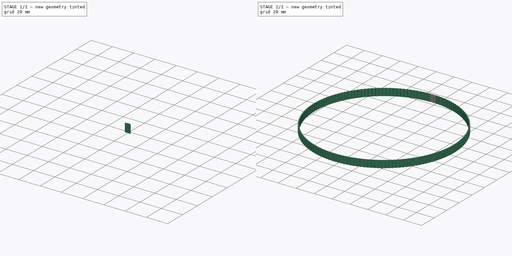
[diagram: build sequence overview — one tinted view per stage of 2, left to right]
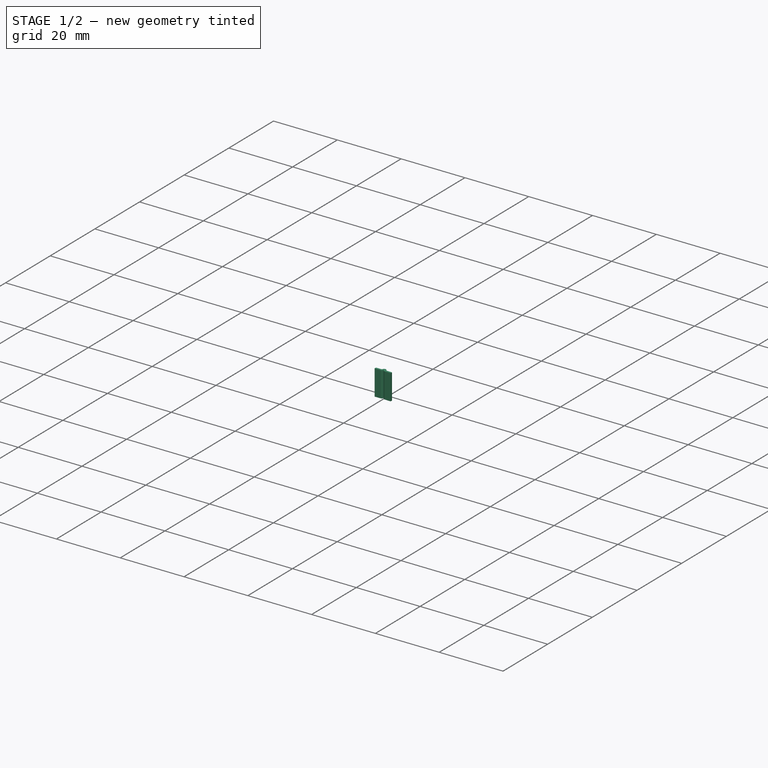
[diagram: stage 1 of 2 — iso view after this stage's code; geometry added in this stage tinted green]
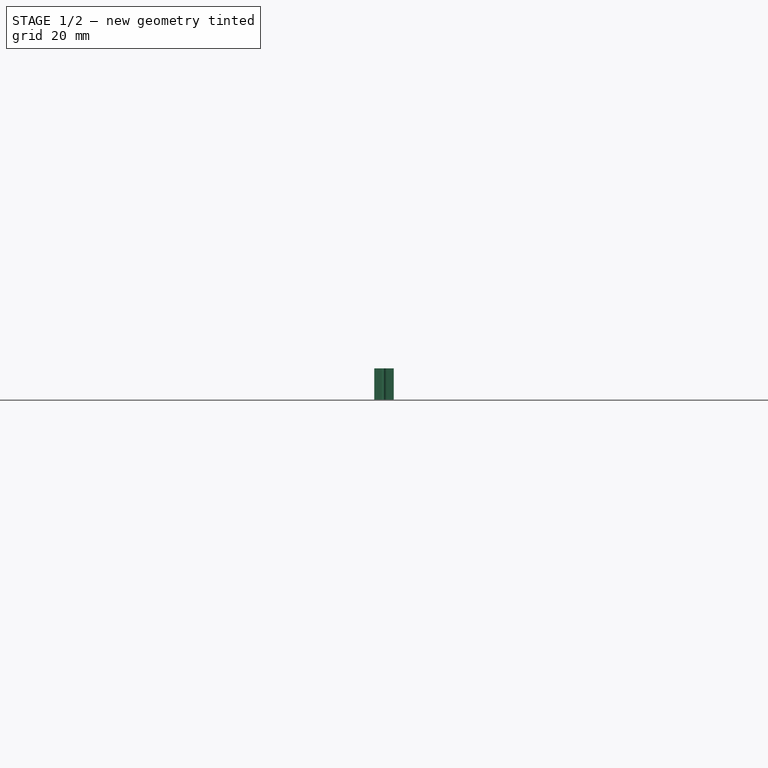
[diagram: stage 1 of 2 — front view after this stage's code; geometry added in this stage tinted green]
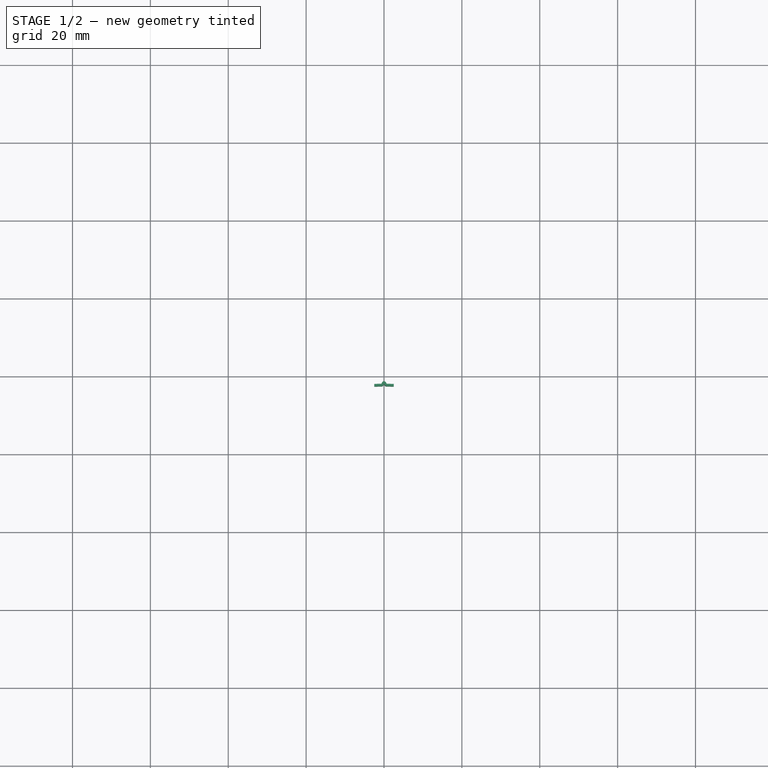
[diagram: stage 1 of 2 — top view after this stage's code; geometry added in this stage tinted green]
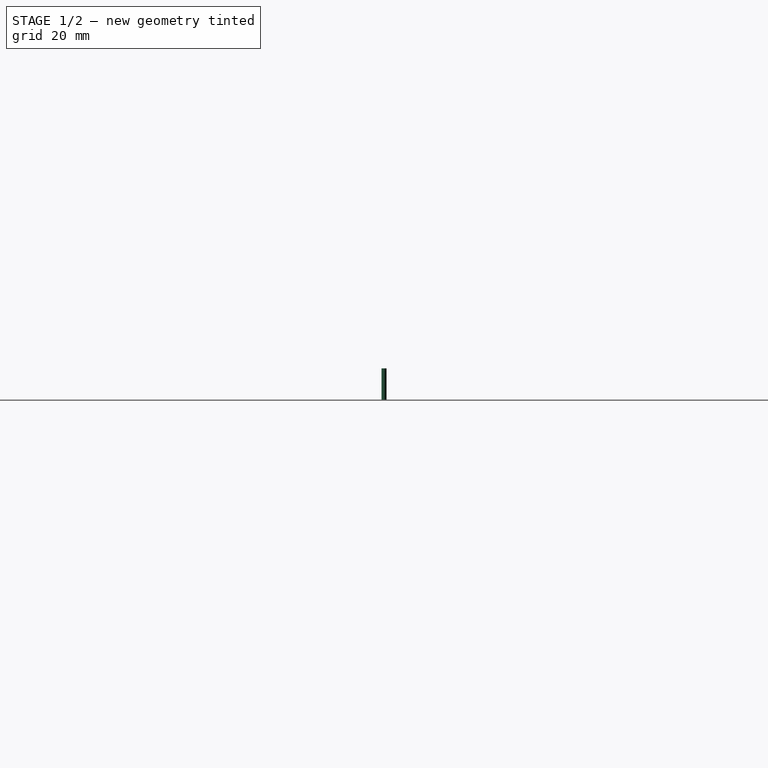
[diagram: stage 1 of 2 — right view after this stage's code; geometry added in this stage tinted green]
FCSTD DOCUMENT  (FreeCAD 0.20R28647 (Git))
Label: Hinterrad_Tire2
License: All rights reserved
LicenseURL: http://en.wikipedia.org/wiki/All_rights_reserved
objects: Sketcher::SketchObject×1, PartDesign::Pad×1, PartDesign::PolarPattern×1, PartDesign::Body×1, App::MeasureDistance×1
note: 5 computed .brp shape members not serialized (recipe doc carries the construction recipe); baked Part::Feature solids carry a one-line shape summary decoded from their .brp

FEATURE [Sketcher::SketchObject] Sketch
  FullyConstrained = true
  MapMode = 5
  Support = -> [XY_Plane]
  sketch-geometry (14):
    g0: ArcOfCircle CenterX=0 CenterY=0 CenterZ=0 NormalX=0 NormalY=0 NormalZ=1 AngleXU=0 Radius=77.5 StartAngle=1.53853 EndAngle=1.56223
    g1: LineSegment StartX=-2.51935 StartY=78.0594 StartZ=0 EndX=-2.5 EndY=77.4597 EndZ=0
    g2: LineSegment StartX=2.5 StartY=77.4597 StartZ=0 EndX=2.51935 EndY=78.0594 EndZ=0
    g3: LineSegment StartX=-0.669133 StartY=78.0971 StartZ=0 EndX=-0.554328 EndY=78.3743 EndZ=0
    g4: LineSegment StartX=0.554328 StartY=78.3743 StartZ=0 EndX=0.669133 EndY=78.0971 EndZ=0
    g5: ArcOfCircle CenterX=0 CenterY=0 CenterZ=0 NormalX=0 NormalY=0 NormalZ=1 AngleXU=0 Radius=78.1 StartAngle=1.53853 EndAngle=1.56223
    g6: ArcOfCircle CenterX=0 CenterY=0 CenterZ=0 NormalX=0 NormalY=0 NormalZ=1 AngleXU=0 Radius=78.1 StartAngle=1.57936 EndAngle=1.60306
    g7: ArcOfCircle CenterX=0.669133 CenterY=78.0971 CenterZ=0 NormalX=0 NormalY=0 NormalZ=1 AngleXU=0 Radius=0.6 StartAngle=3.53429 EndAngle=4.70382
    g8: ArcOfCircle CenterX=0 CenterY=0 CenterZ=0 NormalX=0 NormalY=0 NormalZ=1 AngleXU=0 Radius=77.5 StartAngle=1.57936 EndAngle=1.60306
    g9: LineSegment StartX=-0.114805 StartY=77.8675 StartZ=0 EndX=0 EndY=78.1447 EndZ=0
    g10: LineSegment StartX=0 StartY=78.1447 StartZ=0 EndX=0.114805 EndY=77.8675 EndZ=0
    g11: ArcOfCircle CenterX=-0.669133 CenterY=78.0971 CenterZ=0 NormalX=0 NormalY=0 NormalZ=1 AngleXU=0 Radius=0.6 StartAngle=4.72097 EndAngle=5.89049
    g12: ArcOfCircle CenterX=0 CenterY=78.1447 CenterZ=0 NormalX=0 NormalY=0 NormalZ=1 AngleXU=0 Radius=0.6 StartAngle=0.392699 EndAngle=2.74889
    g13: GeomPoint X=1.23e-14 Y=79.7126 Z=0
  constraints (35):
    c: Coincident(g0,g-1)
    c: Coincident(g5,g0)
    c: Coincident(g1,g6)
    c: Coincident(g1,g8)
    c: Coincident(g2,g0)
    c: Coincident(g2,g5)
    c: PointOnObject(g0,g2)
    c: PointOnObject(g0,g1)
    c: Distance(g2) = 0.6
    c: Symmetric(g8,g0,g-2)
    c: Coincident(g5,g6)
    c: Coincident(g5,g4)
    c: PointOnObject(g3,g5)
    c: Radius(g0) = 77.5
    c: Coincident(g7,g4)
    c: Coincident(g0,g8)
    c: Tangent(g0,g7) = 1.5708
    c: Coincident(g9,g10)
    c: Tangent(g10,g7) = -1.5708
    c: Tangent(g9,g11) = -1.5708
    c: PointOnObject(g13,g3)
    c: PointOnObject(g13,g4)
    c: Tangent(g3,g12) = 1.5708
    c: Tangent(g4,g12) = 1.5708
    c: Equal(g10,g9)
    c: Coincident(g9,g12)
    c: Equal(g11,g7)
    c: Distance(g4) = 0.3
    c: Equal(g11,g12)
    c: Angle(g9,g10) = 0.785398
    c: Coincident(g11,g3)
    c: DistanceX(g1,g0) = 5
    c: Coincident(g6,g3)
    c: Coincident(g8,g11)
    c: PointOnObject(g9,g-2)
FEATURE [PartDesign::Pad] Pad
  Direction = (0,0,1)
  Length = 8
  Length2 = 10
  Profile = -> Sketch
  ReferenceAxis = -> Sketch [N_Axis]
  Type = 0
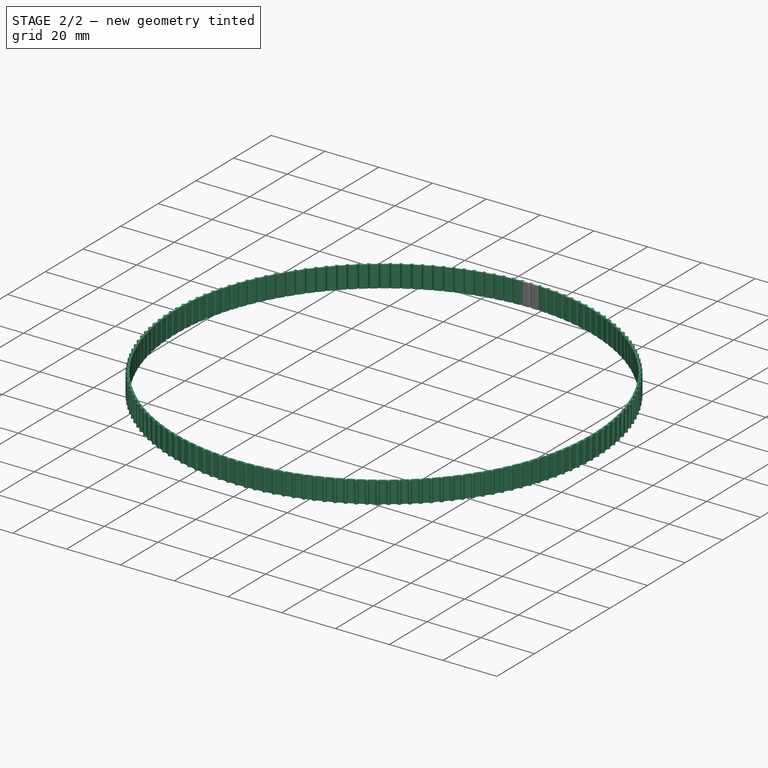
[diagram: stage 2 of 2 — iso view after this stage's code; geometry added in this stage tinted green]
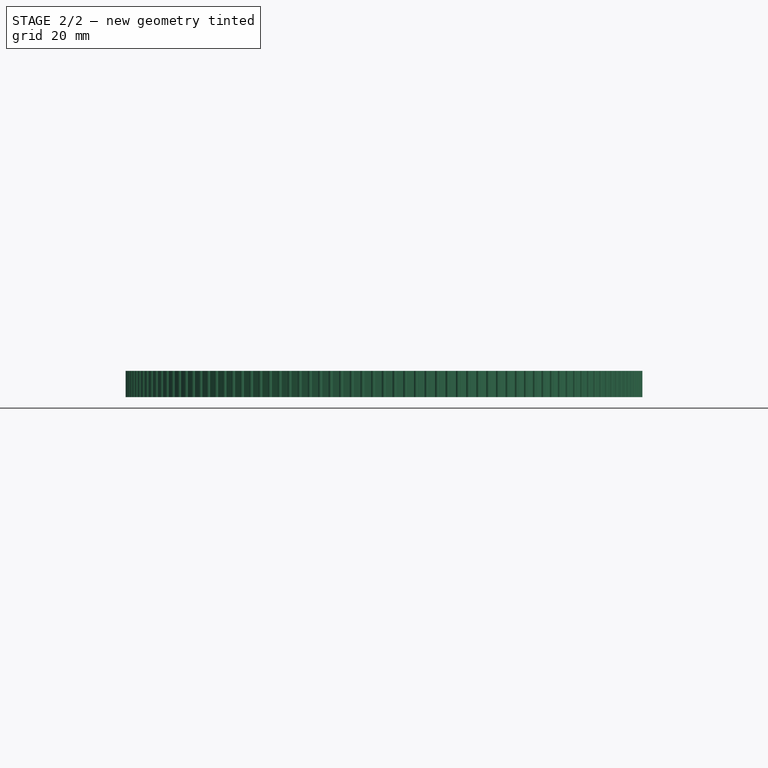
[diagram: stage 2 of 2 — front view after this stage's code; geometry added in this stage tinted green]
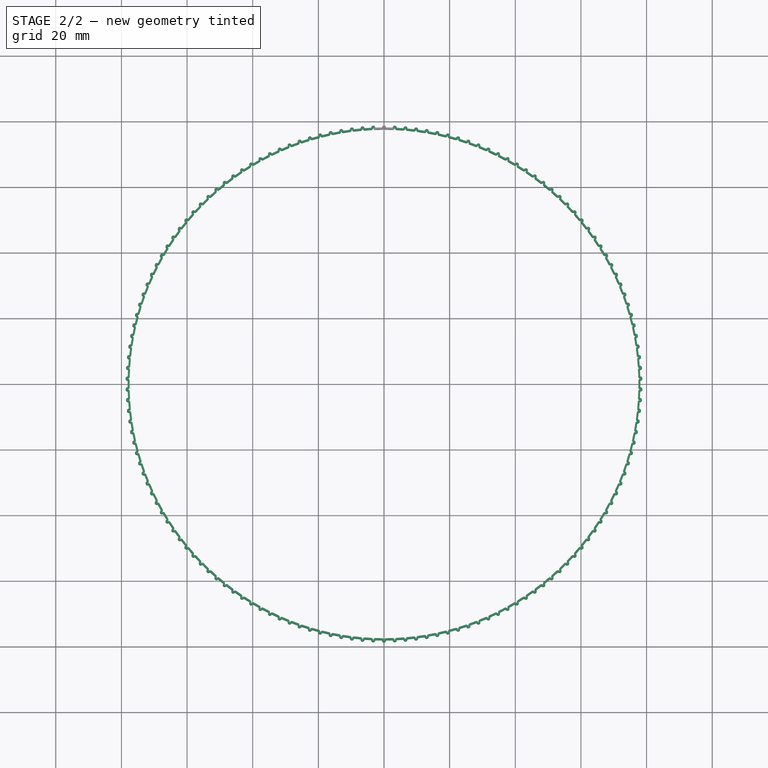
[diagram: stage 2 of 2 — top view after this stage's code; geometry added in this stage tinted green]
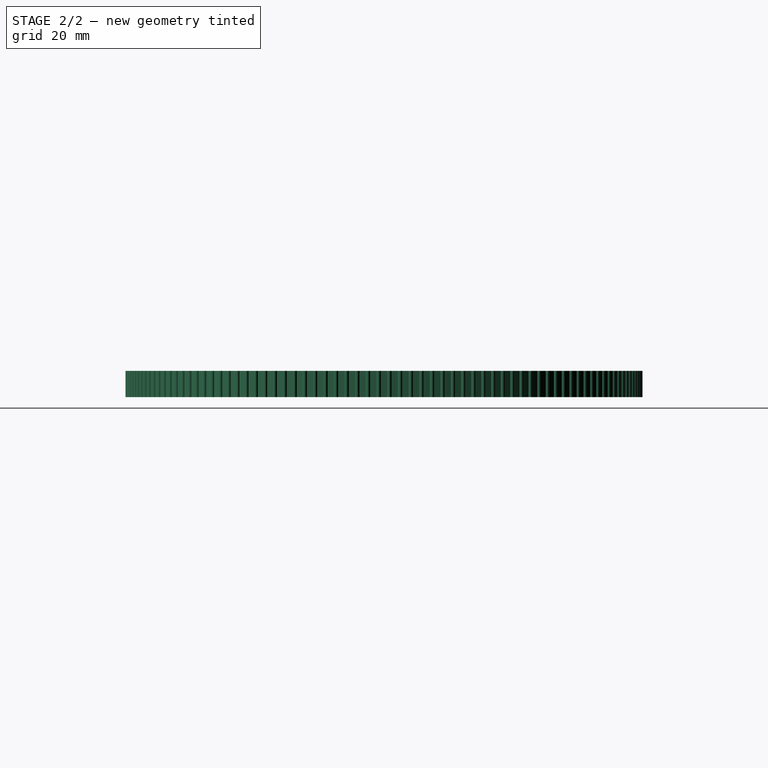
[diagram: stage 2 of 2 — right view after this stage's code; geometry added in this stage tinted green]
FEATURE [PartDesign::PolarPattern] PolarPattern
  Angle = 360
  Axis = -> Sketch [N_Axis]
  BaseFeature = -> Pad
  Occurrences = 150
  Originals = -> [Pad]
  Overlap = 0
  Refine = true
FEATURE [PartDesign::Body] Body
  Group = -> [Sketch,Pad,PolarPattern]
  Origin = -> Origin
  Tip = -> PolarPattern
FEATURE [App::MeasureDistance] Distance  label="Distance: 4,609 mm"
  Distance = 4.60906
  P1 = (-3.93891,78.0006,8)
  P2 = (0.669133,78.0971,8)
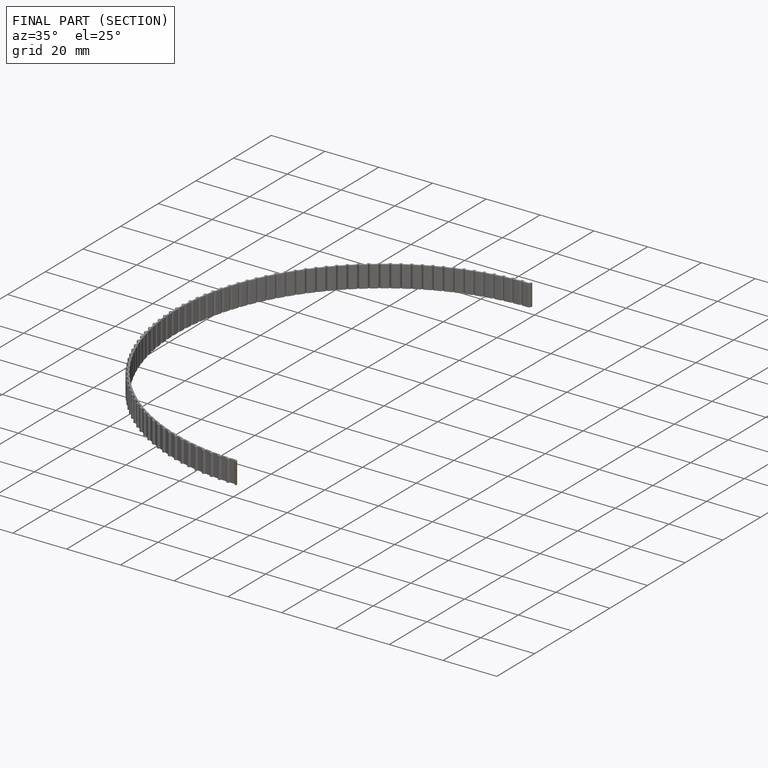
[diagram: finished part — half-section view (interior)]
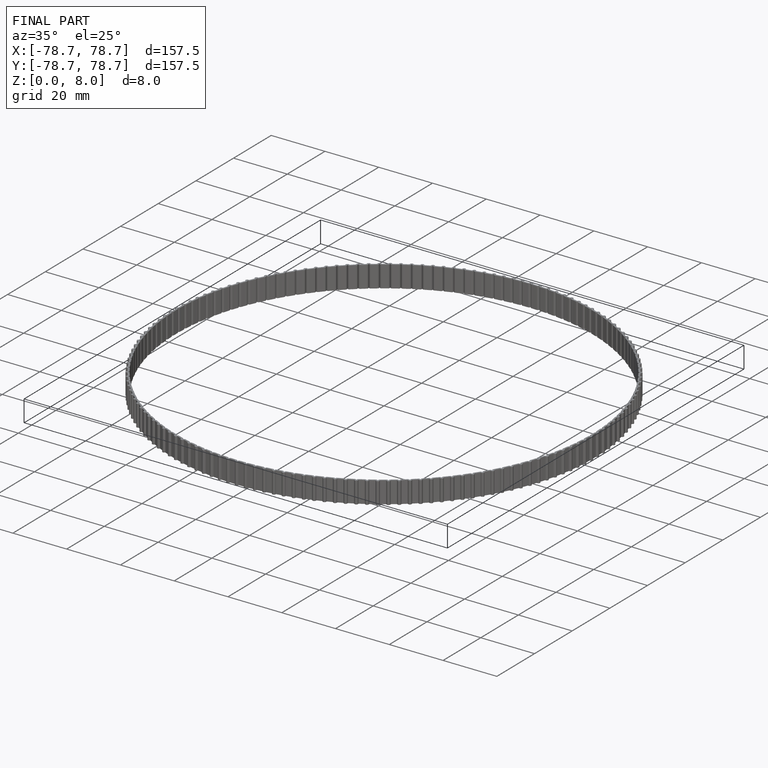
[diagram: finished part — iso view with bounding-box wireframe]
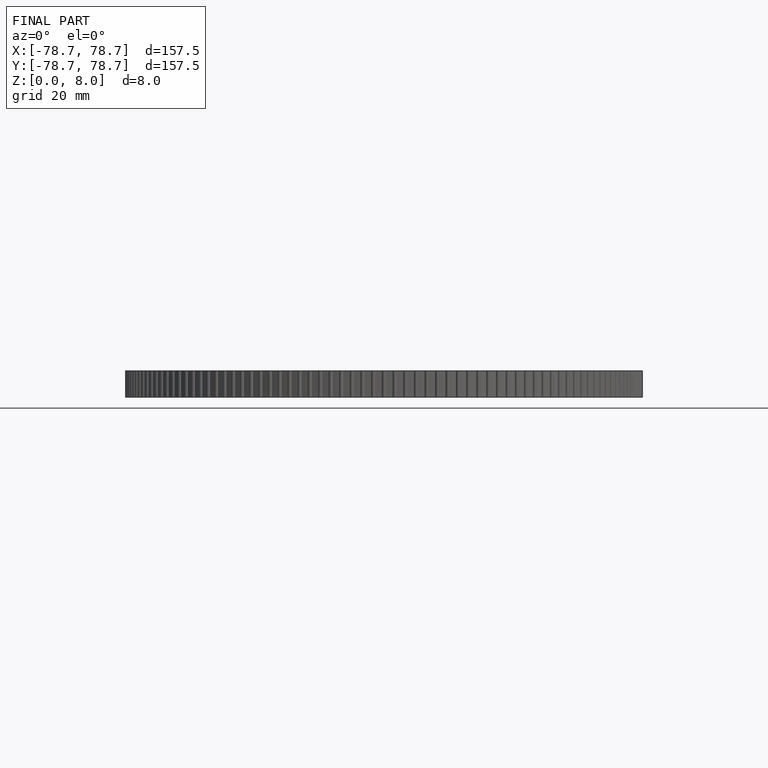
[diagram: finished part — front view with bounding-box wireframe]
